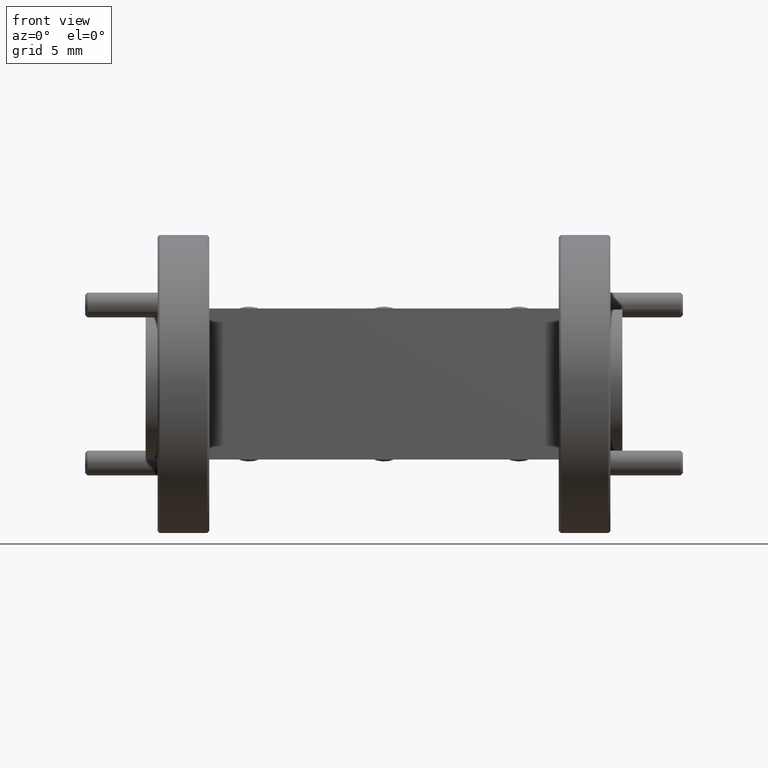
[diagram: clean part render]
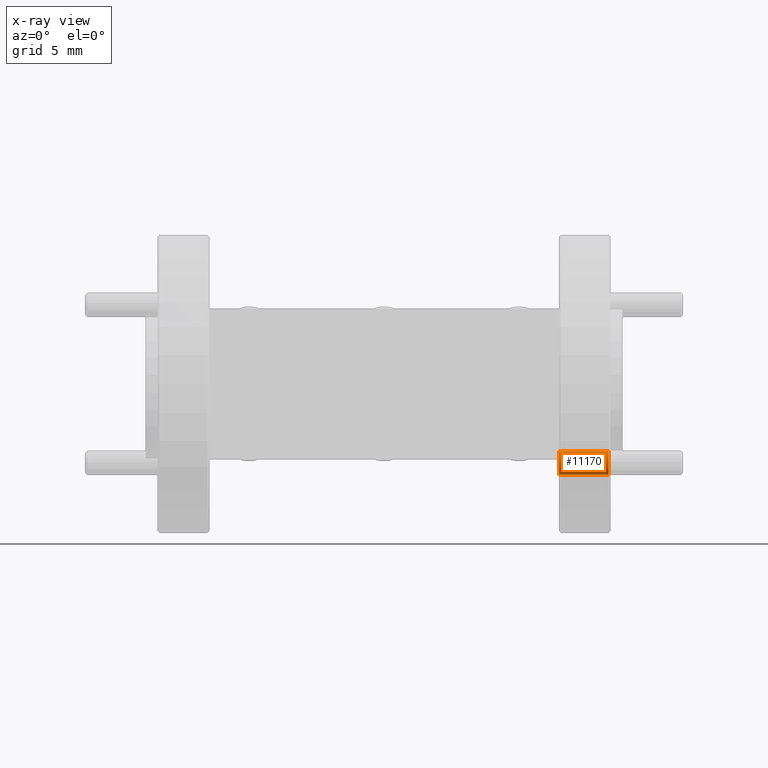
[diagram: x-ray — body ghosted, one internal face saturated and labeled with its STEP entity id]
A machine part, front view, then the same camera in x-ray: the body is ghosted and one INTERNAL B-rep face — a face not visible from any outside direction — is saturated and labeled: STEP entity #11170.
In plain terms, the highlighted cylindrical surface (edge-blend (fillet) strip) has radius 0.7556 mm, axis along (1, 0, 0).
Its self-contained STEP definition (entity closure, byte-faithful):
#611 = DIRECTION ( 'NONE',  ( 0.0000000000000000000, 0.0000000000000000000, -1.000000000000000000 ) ) ;
#919 = EDGE_CURVE ( 'NONE', #6179, #9436, #11499, .T. ) ;
#984 = DIRECTION ( 'NONE',  ( 1.000000000000000000, 0.0000000000000000000, 0.0000000000000000000 ) ) ;
#1051 = CARTESIAN_POINT ( 'NONE',  ( 0.5699999999999999500, -0.2293737822087167100, -0.1988737822087171000 ) ) ;
#1142 = CARTESIAN_POINT ( 'NONE',  ( 0.5699999999999999500, -0.2293737822087167100, -0.2286237822087168700 ) ) ;
#1576 = CARTESIAN_POINT ( 'NONE',  ( 0.4400000000000001100, -0.2293737822087167100, -0.1988737822087171000 ) ) ;
#1635 = EDGE_CURVE ( 'NONE', #9436, #1957, #8980, .T. ) ;
#1957 = VERTEX_POINT ( 'NONE', #4809 ) ;
#2452 = ORIENTED_EDGE ( 'NONE', *, *, #1635, .F. ) ;
#2756 = CARTESIAN_POINT ( 'NONE',  ( 0.5649999999999999500, -0.2293737822087167100, -0.1988737822087171000 ) ) ;
#2795 = CYLINDRICAL_SURFACE ( 'NONE', #5801, 0.02974999999999976600 ) ;
#3124 = CARTESIAN_POINT ( 'NONE',  ( 0.4400000000000001100, -0.2293737822087167100, -0.1691237822087173800 ) ) ;
#4008 = AXIS2_PLACEMENT_3D ( 'NONE', #2756, #6251, #5280 ) ;
#4215 = DIRECTION ( 'NONE',  ( 1.000000000000000000, 0.0000000000000000000, 0.0000000000000000000 ) ) ;
#4277 = CARTESIAN_POINT ( 'NONE',  ( 0.5649999999999999500, -0.2293737822087167100, -0.1691237822087171300 ) ) ;
#4809 = CARTESIAN_POINT ( 'NONE',  ( 0.5649999999999999500, -0.2293737822087167100, -0.2286237822087171000 ) ) ;
#5013 = LINE ( 'NONE', #6041, #6278 ) ;
#5024 = FACE_OUTER_BOUND ( 'NONE', #6080, .T. ) ;
#5219 = VECTOR ( 'NONE', #7382, 39.37007874015748100 ) ;
#5280 = DIRECTION ( 'NONE',  ( 0.0000000000000000000, 0.0000000000000000000, -1.000000000000000000 ) ) ;
#5450 = DIRECTION ( 'NONE',  ( 0.0000000000000000000, 0.0000000000000000000, -1.000000000000000000 ) ) ;
#5801 = AXIS2_PLACEMENT_3D ( 'NONE', #1051, #984, #5450 ) ;
#6041 = CARTESIAN_POINT ( 'NONE',  ( 0.5699999999999999500, -0.2293737822087167100, -0.1691237822087173200 ) ) ;
#6080 = EDGE_LOOP ( 'NONE', ( #6873, #6669, #6832, #2452 ) ) ;
#6179 = VERTEX_POINT ( 'NONE', #3124 ) ;
#6251 = DIRECTION ( 'NONE',  ( 1.000000000000000000, 0.0000000000000000000, 0.0000000000000000000 ) ) ;
#6278 = VECTOR ( 'NONE', #4215, 39.37007874015748100 ) ;
#6624 = EDGE_CURVE ( 'NONE', #8698, #1957, #11049, .T. ) ;
#6669 = ORIENTED_EDGE ( 'NONE', *, *, #8143, .T. ) ;
#6832 = ORIENTED_EDGE ( 'NONE', *, *, #6624, .T. ) ;
#6873 = ORIENTED_EDGE ( 'NONE', *, *, #919, .F. ) ;
#7382 = DIRECTION ( 'NONE',  ( 1.000000000000000000, 0.0000000000000000000, 0.0000000000000000000 ) ) ;
#8143 = EDGE_CURVE ( 'NONE', #6179, #8698, #5013, .T. ) ;
#8160 = AXIS2_PLACEMENT_3D ( 'NONE', #1576, #11301, #611 ) ;
#8698 = VERTEX_POINT ( 'NONE', #4277 ) ;
#8980 = LINE ( 'NONE', #1142, #5219 ) ;
#9436 = VERTEX_POINT ( 'NONE', #10792 ) ;
#10792 = CARTESIAN_POINT ( 'NONE',  ( 0.4400000000000001100, -0.2293737822087167100, -0.2286237822087168700 ) ) ;
#11049 = CIRCLE ( 'NONE', #4008, 0.02975000000000000200 ) ;
#11170 = ADVANCED_FACE ( 'NONE', ( #5024 ), #2795, .F. ) ;
#11301 = DIRECTION ( 'NONE',  ( 1.000000000000000000, 0.0000000000000000000, 0.0000000000000000000 ) ) ;
#11499 = CIRCLE ( 'NONE', #8160, 0.02974999999999976600 ) ;